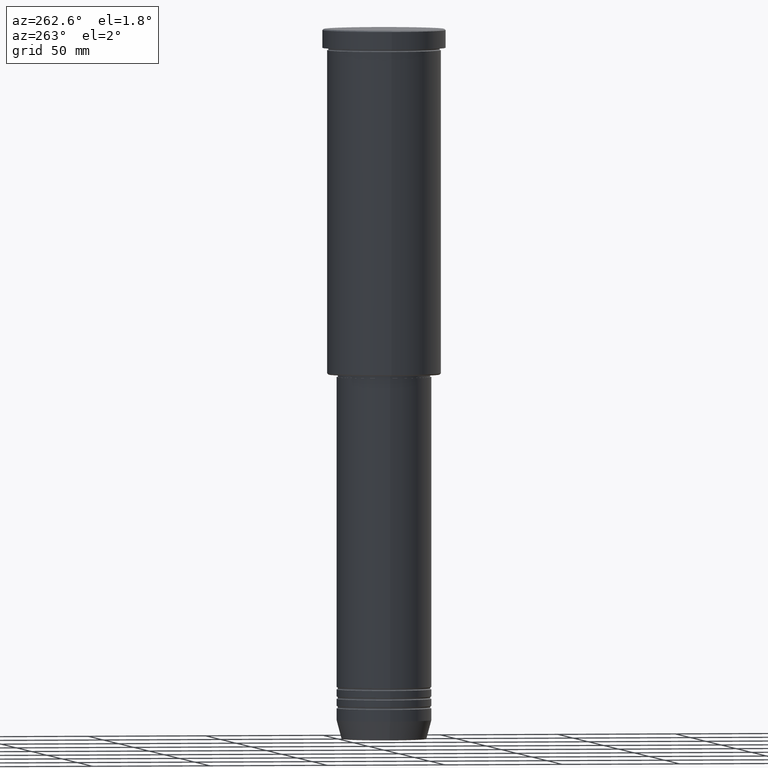
[diagram: clean part render]
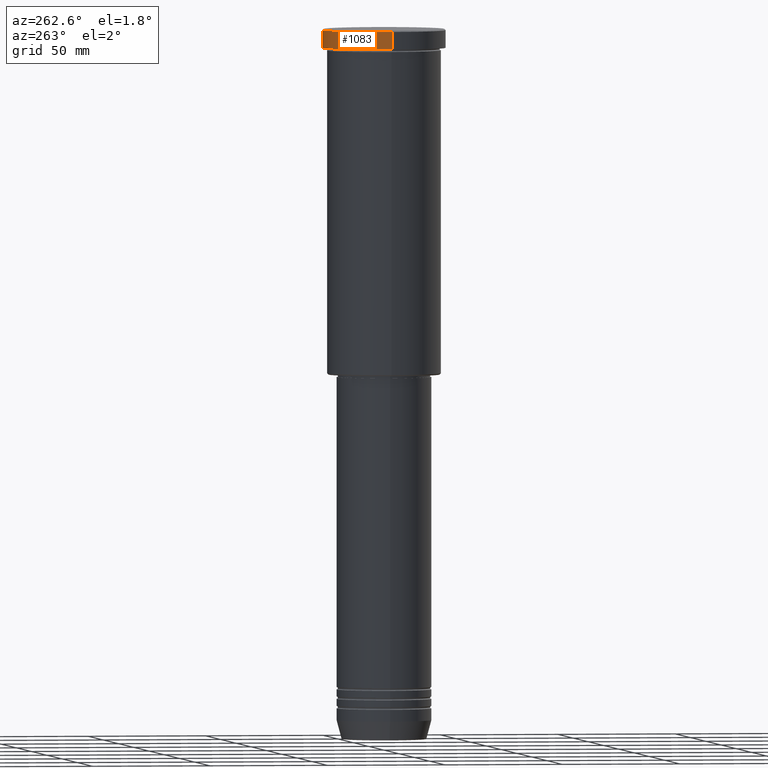
[diagram: same view with one face highlighted and labeled with its STEP entity id]
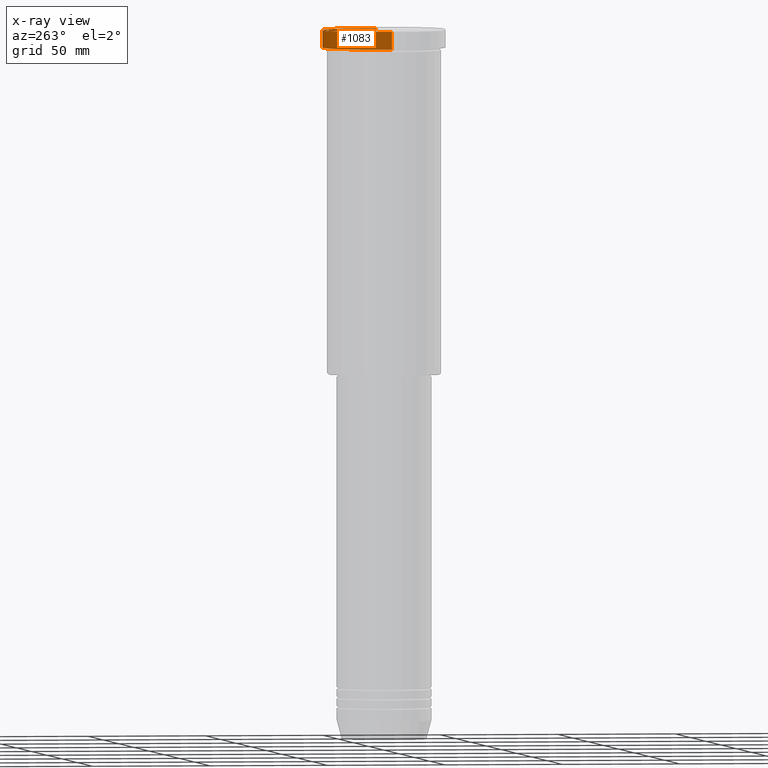
[diagram: x-ray of the same camera — body ghosted, the highlighted face saturated]
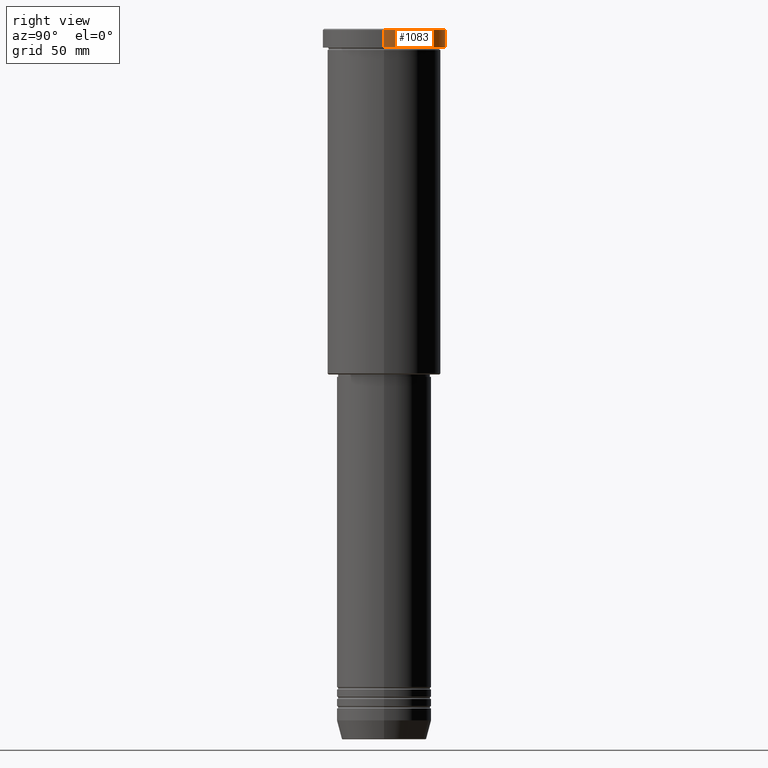
[diagram: same view with one face highlighted and labeled with its STEP entity id]
A machine part, auxiliary view. The second image highlights one B-rep face of the part: STEP entity #1083.
The next image is the same camera in x-ray: the body ghosted, the highlighted face saturated — about 6% of this face is hidden behind the body in this view.
A second angle (right view) of the same face is appended — the face is thin or edge-on in the first view.
In plain terms, the highlighted cylindrical surface (partial cylindrical patch) has radius 26 mm, axis along (-0, -0, 1).
Its self-contained STEP definition (entity closure, byte-faithful):
#10 = CIRCLE ( 'NONE', #1048, 26.00000000000000000 ) ;
#16 = ORIENTED_EDGE ( 'NONE', *, *, #835, .T. ) ;
#17 = ORIENTED_EDGE ( 'NONE', *, *, #533, .T. ) ;
#28 = CARTESIAN_POINT ( 'NONE',  ( -26.00000000000000000, 3.184081677783118191E-15, -7.999999999999992895 ) ) ;
#73 = VERTEX_POINT ( 'NONE', #1075 ) ;
#112 = DIRECTION ( 'NONE',  ( -0.000000000000000000, -0.000000000000000000, 1.000000000000000000 ) ) ;
#125 = VECTOR ( 'NONE', #724, 1000.000000000000000 ) ;
#145 = EDGE_CURVE ( 'NONE', #73, #762, #810, .T. ) ;
#155 = ORIENTED_EDGE ( 'NONE', *, *, #145, .F. ) ;
#220 = DIRECTION ( 'NONE',  ( -0.000000000000000000, -0.000000000000000000, 1.000000000000000000 ) ) ;
#249 = VERTEX_POINT ( 'NONE', #480 ) ;
#274 = EDGE_LOOP ( 'NONE', ( #16, #844, #17, #155 ) ) ;
#325 = CARTESIAN_POINT ( 'NONE',  ( 0.000000000000000000, 0.000000000000000000, -0.4999999999999692468 ) ) ;
#360 = DIRECTION ( 'NONE',  ( 0.000000000000000000, 0.000000000000000000, -1.000000000000000000 ) ) ;
#381 = CYLINDRICAL_SURFACE ( 'NONE', #537, 26.00000000000000000 ) ;
#395 = DIRECTION ( 'NONE',  ( 1.000000000000000000, 0.000000000000000000, 0.000000000000000000 ) ) ;
#424 = DIRECTION ( 'NONE',  ( 1.000000000000000000, 0.000000000000000000, 0.000000000000000000 ) ) ;
#465 = LINE ( 'NONE', #832, #674 ) ;
#480 = CARTESIAN_POINT ( 'NONE',  ( -26.00000000000000000, 3.184081677783118191E-15, -0.4999999999999692468 ) ) ;
#533 = EDGE_CURVE ( 'NONE', #249, #762, #10, .T. ) ;
#537 = AXIS2_PLACEMENT_3D ( 'NONE', #1020, #112, #560 ) ;
#560 = DIRECTION ( 'NONE',  ( 1.000000000000000000, 0.000000000000000000, 0.000000000000000000 ) ) ;
#561 = CIRCLE ( 'NONE', #936, 26.00000000000000000 ) ;
#674 = VECTOR ( 'NONE', #843, 1000.000000000000000 ) ;
#724 = DIRECTION ( 'NONE',  ( -0.000000000000000000, -0.000000000000000000, 1.000000000000000000 ) ) ;
#735 = CARTESIAN_POINT ( 'NONE',  ( 26.00000000000000000, 0.000000000000000000, -0.4999999999999692468 ) ) ;
#762 = VERTEX_POINT ( 'NONE', #735 ) ;
#810 = LINE ( 'NONE', #1165, #125 ) ;
#832 = CARTESIAN_POINT ( 'NONE',  ( -26.00000000000000000, 3.184081677783118191E-15, 0.000000000000000000 ) ) ;
#835 = EDGE_CURVE ( 'NONE', #73, #852, #561, .T. ) ;
#843 = DIRECTION ( 'NONE',  ( -0.000000000000000000, -0.000000000000000000, 1.000000000000000000 ) ) ;
#844 = ORIENTED_EDGE ( 'NONE', *, *, #1147, .T. ) ;
#852 = VERTEX_POINT ( 'NONE', #28 ) ;
#936 = AXIS2_PLACEMENT_3D ( 'NONE', #1118, #220, #395 ) ;
#937 = FACE_OUTER_BOUND ( 'NONE', #274, .T. ) ;
#1020 = CARTESIAN_POINT ( 'NONE',  ( 0.000000000000000000, 0.000000000000000000, 0.000000000000000000 ) ) ;
#1048 = AXIS2_PLACEMENT_3D ( 'NONE', #325, #360, #424 ) ;
#1075 = CARTESIAN_POINT ( 'NONE',  ( 26.00000000000000000, 0.000000000000000000, -7.999999999999992895 ) ) ;
#1083 = ADVANCED_FACE ( 'NONE', ( #937 ), #381, .T. ) ;
#1118 = CARTESIAN_POINT ( 'NONE',  ( 0.000000000000000000, 0.000000000000000000, -7.999999999999992895 ) ) ;
#1147 = EDGE_CURVE ( 'NONE', #852, #249, #465, .T. ) ;
#1165 = CARTESIAN_POINT ( 'NONE',  ( 26.00000000000000000, 0.000000000000000000, 0.000000000000000000 ) ) ;